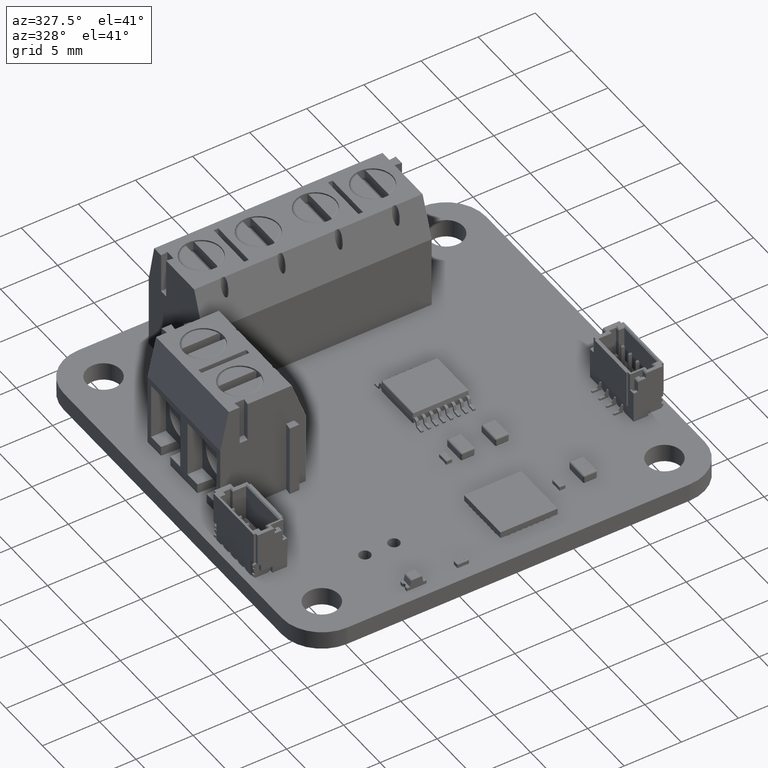
[diagram: clean part render]
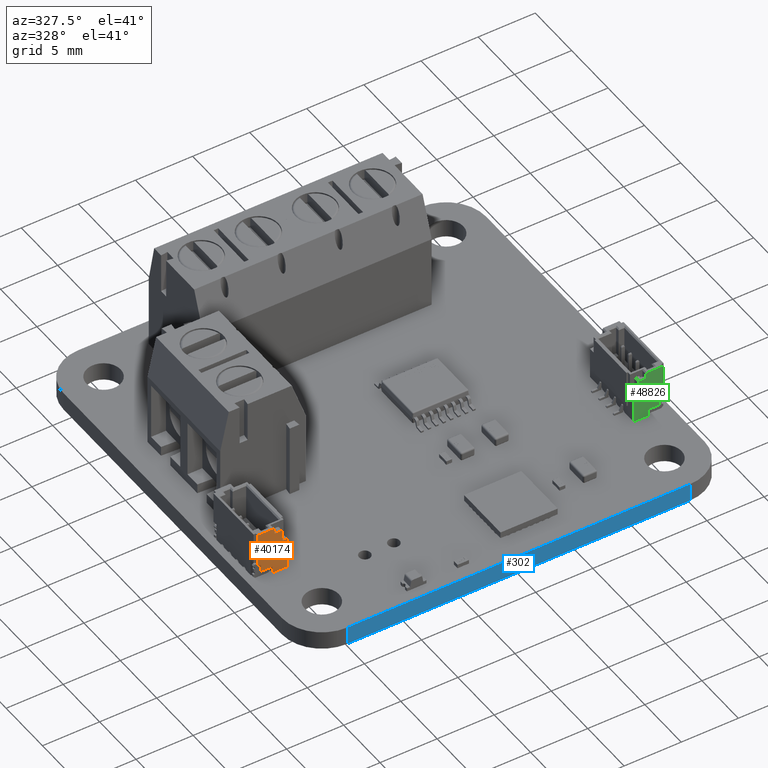
[diagram: same view with three faces highlighted in distinct colors, each labeled with its STEP entity id]
A machine part, auxiliary view with three faces highlighted in distinct colors.
Their STEP definitions:

[orange] entity #40174 — the highlighted planar face has unit normal (0, -1, 0).
#39721 = VERTEX_POINT('',#39722);
#39722 = CARTESIAN_POINT('',(-3.,2.85,1.33));
#39728 = EDGE_CURVE('',#39721,#39729,#39731,.T.);
#39729 = VERTEX_POINT('',#39730);
#39730 = CARTESIAN_POINT('',(-3.,0.1,1.33));
#39731 = LINE('',#39732,#39733);
#39732 = CARTESIAN_POINT('',(-3.,1.1,1.33));
#39733 = VECTOR('',#39734,1.);
#39734 = DIRECTION('',(0.,-1.,-2.168404344971E-16));
#40072 = VERTEX_POINT('',#40073);
#40073 = CARTESIAN_POINT('',(-3.,4.35,-1.25));
#40079 = EDGE_CURVE('',#40072,#40080,#40082,.T.);
#40080 = VERTEX_POINT('',#40081);
#40081 = CARTESIAN_POINT('',(-3.,4.35,0.15));
#40082 = LINE('',#40083,#40084);
#40083 = CARTESIAN_POINT('',(-3.,4.35,1.45));
#40084 = VECTOR('',#40085,1.);
#40085 = DIRECTION('',(-0.,-0.,1.));
#40174 = ADVANCED_FACE('',(#40175),#40271,.T.);
#40175 = FACE_BOUND('',#40176,.T.);
#40176 = EDGE_LOOP('',(#40177,#40178,#40186,#40194,#40202,#40210,#40218,
    #40224,#40225,#40233,#40241,#40249,#40257,#40265));
#40177 = ORIENTED_EDGE('',*,*,#40079,.F.);
#40178 = ORIENTED_EDGE('',*,*,#40179,.T.);
#40179 = EDGE_CURVE('',#40072,#40180,#40182,.T.);
#40180 = VERTEX_POINT('',#40181);
#40181 = CARTESIAN_POINT('',(-3.,1.473205080757,-1.25));
#40182 = LINE('',#40183,#40184);
#40183 = CARTESIAN_POINT('',(-3.,1.884392532177E-16,-1.25));
#40184 = VECTOR('',#40185,1.);
#40185 = DIRECTION('',(-0.,-1.,-1.507514025742E-16));
#40186 = ORIENTED_EDGE('',*,*,#40187,.F.);
#40187 = EDGE_CURVE('',#40188,#40180,#40190,.T.);
#40188 = VERTEX_POINT('',#40189);
#40189 = CARTESIAN_POINT('',(-3.,1.3,-0.95));
#40190 = LINE('',#40191,#40192);
#40191 = CARTESIAN_POINT('',(-3.,0.563637933202,0.32541651246));
#40192 = VECTOR('',#40193,1.);
#40193 = DIRECTION('',(0.,0.5,-0.866025403784));
#40194 = ORIENTED_EDGE('',*,*,#40195,.F.);
#40195 = EDGE_CURVE('',#40196,#40188,#40198,.T.);
#40196 = VERTEX_POINT('',#40197);
#40197 = CARTESIAN_POINT('',(-3.,0.7,-0.95));
#40198 = LINE('',#40199,#40200);
#40199 = CARTESIAN_POINT('',(-3.,1.716653439769E-16,-0.95));
#40200 = VECTOR('',#40201,1.);
#40201 = DIRECTION('',(0.,1.,1.807003620809E-16));
#40202 = ORIENTED_EDGE('',*,*,#40203,.F.);
#40203 = EDGE_CURVE('',#40204,#40196,#40206,.T.);
#40204 = VERTEX_POINT('',#40205);
#40205 = CARTESIAN_POINT('',(-3.,0.7,5.E-02));
#40206 = LINE('',#40207,#40208);
#40207 = CARTESIAN_POINT('',(-3.,0.7,0.));
#40208 = VECTOR('',#40209,1.);
#40209 = DIRECTION('',(0.,0.,-1.));
#40210 = ORIENTED_EDGE('',*,*,#40211,.F.);
#40211 = EDGE_CURVE('',#40212,#40204,#40214,.T.);
#40212 = VERTEX_POINT('',#40213);
#40213 = CARTESIAN_POINT('',(-3.,0.1,5.E-02));
#40214 = LINE('',#40215,#40216);
#40215 = CARTESIAN_POINT('',(-3.,-2.823443157514E-18,5.E-02));
#40216 = VECTOR('',#40217,1.);
#40217 = DIRECTION('',(0.,1.,5.646886315029E-17));
#40218 = ORIENTED_EDGE('',*,*,#40219,.F.);
#40219 = EDGE_CURVE('',#39729,#40212,#40220,.T.);
#40220 = LINE('',#40221,#40222);
#40221 = CARTESIAN_POINT('',(-3.,0.1,1.33));
#40222 = VECTOR('',#40223,1.);
#40223 = DIRECTION('',(0.,-1.462502930511E-17,-1.));
#40224 = ORIENTED_EDGE('',*,*,#39728,.F.);
#40225 = ORIENTED_EDGE('',*,*,#40226,.T.);
#40226 = EDGE_CURVE('',#39721,#40227,#40229,.T.);
#40227 = VERTEX_POINT('',#40228);
#40228 = CARTESIAN_POINT('',(-3.,2.85,0.95));
#40229 = LINE('',#40230,#40231);
#40230 = CARTESIAN_POINT('',(-3.,2.85,0.));
#40231 = VECTOR('',#40232,1.);
#40232 = DIRECTION('',(0.,0.,-1.));
#40233 = ORIENTED_EDGE('',*,*,#40234,.T.);
#40234 = EDGE_CURVE('',#40227,#40235,#40237,.T.);
#40235 = VERTEX_POINT('',#40236);
#40236 = CARTESIAN_POINT('',(-3.,3.75,0.95));
#40237 = LINE('',#40238,#40239);
#40238 = CARTESIAN_POINT('',(-3.,0.,0.95));
#40239 = VECTOR('',#40240,1.);
#40240 = DIRECTION('',(0.,1.,0.));
#40241 = ORIENTED_EDGE('',*,*,#40242,.T.);
#40242 = EDGE_CURVE('',#40235,#40243,#40245,.T.);
#40243 = VERTEX_POINT('',#40244);
#40244 = CARTESIAN_POINT('',(-3.,3.85,0.85));
#40245 = LINE('',#40246,#40247);
#40246 = CARTESIAN_POINT('',(-3.,2.35,2.35));
#40247 = VECTOR('',#40248,1.);
#40248 = DIRECTION('',(0.,0.707106781187,-0.707106781187));
#40249 = ORIENTED_EDGE('',*,*,#40250,.T.);
#40250 = EDGE_CURVE('',#40243,#40251,#40253,.T.);
#40251 = VERTEX_POINT('',#40252);
#40252 = CARTESIAN_POINT('',(-3.,3.85,0.25));
#40253 = LINE('',#40254,#40255);
#40254 = CARTESIAN_POINT('',(-3.,3.85,-2.782785576046E-15));
#40255 = VECTOR('',#40256,1.);
#40256 = DIRECTION('',(-0.,-7.228014483237E-16,-1.));
#40257 = ORIENTED_EDGE('',*,*,#40258,.T.);
#40258 = EDGE_CURVE('',#40251,#40259,#40261,.T.);
#40259 = VERTEX_POINT('',#40260);
#40260 = CARTESIAN_POINT('',(-3.,4.25,0.25));
#40261 = LINE('',#40262,#40263);
#40262 = CARTESIAN_POINT('',(-3.,3.388131789017E-17,0.25));
#40263 = VECTOR('',#40264,1.);
#40264 = DIRECTION('',(0.,1.,-1.355252715607E-16));
#40265 = ORIENTED_EDGE('',*,*,#40266,.T.);
#40266 = EDGE_CURVE('',#40259,#40080,#40267,.T.);
#40267 = LINE('',#40268,#40269);
#40268 = CARTESIAN_POINT('',(-3.,2.25,2.25));
#40269 = VECTOR('',#40270,1.);
#40270 = DIRECTION('',(0.,0.707106781187,-0.707106781187));
#40271 = PLANE('',#40272);
#40272 = AXIS2_PLACEMENT_3D('',#40273,#40274,#40275);
#40273 = CARTESIAN_POINT('',(-3.,0.,0.));
#40274 = DIRECTION('',(-1.,0.,0.));
#40275 = DIRECTION('',(0.,0.,1.));

[blue] entity #302 — the highlighted planar face has unit normal (0, -1, 0).
#275 = VERTEX_POINT('',#276);
#276 = CARTESIAN_POINT('',(33.5,-2.22044604925E-16,1.59540194));
#283 = EDGE_CURVE('',#284,#275,#286,.T.);
#284 = VERTEX_POINT('',#285);
#285 = CARTESIAN_POINT('',(33.5,-2.22044604925E-16,0.));
#286 = LINE('',#287,#288);
#287 = CARTESIAN_POINT('',(33.5,-2.22044604925E-16,0.));
#288 = VECTOR('',#289,1.);
#289 = DIRECTION('',(0.,0.,1.));
#302 = ADVANCED_FACE('',(#303),#328,.T.);
#303 = FACE_BOUND('',#304,.T.);
#304 = EDGE_LOOP('',(#305,#306,#314,#322));
#305 = ORIENTED_EDGE('',*,*,#283,.T.);
#306 = ORIENTED_EDGE('',*,*,#307,.T.);
#307 = EDGE_CURVE('',#275,#308,#310,.T.);
#308 = VERTEX_POINT('',#309);
#309 = CARTESIAN_POINT('',(3.5,0.,1.59540194));
#310 = LINE('',#311,#312);
#311 = CARTESIAN_POINT('',(33.5,0.,1.59540194));
#312 = VECTOR('',#313,1.);
#313 = DIRECTION('',(-1.,0.,0.));
#314 = ORIENTED_EDGE('',*,*,#315,.F.);
#315 = EDGE_CURVE('',#316,#308,#318,.T.);
#316 = VERTEX_POINT('',#317);
#317 = CARTESIAN_POINT('',(3.5,0.,0.));
#318 = LINE('',#319,#320);
#319 = CARTESIAN_POINT('',(3.5,0.,0.));
#320 = VECTOR('',#321,1.);
#321 = DIRECTION('',(0.,0.,1.));
#322 = ORIENTED_EDGE('',*,*,#323,.F.);
#323 = EDGE_CURVE('',#284,#316,#324,.T.);
#324 = LINE('',#325,#326);
#325 = CARTESIAN_POINT('',(33.5,0.,0.));
#326 = VECTOR('',#327,1.);
#327 = DIRECTION('',(-1.,0.,0.));
#328 = PLANE('',#329);
#329 = AXIS2_PLACEMENT_3D('',#330,#331,#332);
#330 = CARTESIAN_POINT('',(33.5,0.,0.));
#331 = DIRECTION('',(0.,-1.,0.));
#332 = DIRECTION('',(-1.,0.,0.));

[green] entity #48826 — the highlighted planar face has unit normal (-0, 1, 0).
#47794 = VERTEX_POINT('',#47795);
#47795 = CARTESIAN_POINT('',(3.,0.1,5.E-02));
#47801 = EDGE_CURVE('',#47802,#47794,#47804,.T.);
#47802 = VERTEX_POINT('',#47803);
#47803 = CARTESIAN_POINT('',(3.,0.1,1.33));
#47804 = LINE('',#47805,#47806);
#47805 = CARTESIAN_POINT('',(3.,0.1,1.33));
#47806 = VECTOR('',#47807,1.);
#47807 = DIRECTION('',(0.,-1.E-17,-1.));
#47964 = EDGE_CURVE('',#47965,#47802,#47967,.T.);
#47965 = VERTEX_POINT('',#47966);
#47966 = CARTESIAN_POINT('',(3.,2.85,1.33));
#47967 = LINE('',#47968,#47969);
#47968 = CARTESIAN_POINT('',(3.,1.1,1.33));
#47969 = VECTOR('',#47970,1.);
#47970 = DIRECTION('',(0.,-1.,-2.2E-16));
#48209 = EDGE_CURVE('',#47965,#48210,#48212,.T.);
#48210 = VERTEX_POINT('',#48211);
#48211 = CARTESIAN_POINT('',(3.,2.85,0.95));
#48212 = LINE('',#48213,#48214);
#48213 = CARTESIAN_POINT('',(3.,2.85,0.));
#48214 = VECTOR('',#48215,1.);
#48215 = DIRECTION('',(0.,0.,-1.));
#48258 = VERTEX_POINT('',#48259);
#48259 = CARTESIAN_POINT('',(3.,3.85,0.85));
#48265 = EDGE_CURVE('',#48258,#48266,#48268,.T.);
#48266 = VERTEX_POINT('',#48267);
#48267 = CARTESIAN_POINT('',(3.,3.85,0.25));
#48268 = LINE('',#48269,#48270);
#48269 = CARTESIAN_POINT('',(3.,3.85,-2.78E-15));
#48270 = VECTOR('',#48271,1.);
#48271 = DIRECTION('',(0.,-7.2E-16,-1.));
#48450 = VERTEX_POINT('',#48451);
#48451 = CARTESIAN_POINT('',(3.,4.35,0.15));
#48457 = EDGE_CURVE('',#48458,#48450,#48460,.T.);
#48458 = VERTEX_POINT('',#48459);
#48459 = CARTESIAN_POINT('',(3.,4.35,-1.25));
#48460 = LINE('',#48461,#48462);
#48461 = CARTESIAN_POINT('',(3.,4.35,1.45));
#48462 = VECTOR('',#48463,1.);
#48463 = DIRECTION('',(-0.,-0.,1.));
#48826 = ADVANCED_FACE('',(#48827),#48900,.F.);
#48827 = FACE_BOUND('',#48828,.T.);
#48828 = EDGE_LOOP('',(#48829,#48839,#48845,#48846,#48854,#48860,#48861,
    #48869,#48875,#48876,#48877,#48878,#48886,#48894));
#48829 = ORIENTED_EDGE('',*,*,#48830,.T.);
#48830 = EDGE_CURVE('',#48831,#48833,#48835,.T.);
#48831 = VERTEX_POINT('',#48832);
#48832 = CARTESIAN_POINT('',(3.,1.3,-0.95));
#48833 = VERTEX_POINT('',#48834);
#48834 = CARTESIAN_POINT('',(3.,1.473205080757,-1.25));
#48835 = LINE('',#48836,#48837);
#48836 = CARTESIAN_POINT('',(3.,0.563637933202,0.32541651246));
#48837 = VECTOR('',#48838,1.);
#48838 = DIRECTION('',(0.,0.5,-0.866025403784));
#48839 = ORIENTED_EDGE('',*,*,#48840,.F.);
#48840 = EDGE_CURVE('',#48458,#48833,#48841,.T.);
#48841 = LINE('',#48842,#48843);
#48842 = CARTESIAN_POINT('',(3.,1.9E-16,-1.25));
#48843 = VECTOR('',#48844,1.);
#48844 = DIRECTION('',(0.,-1.,-1.5E-16));
#48845 = ORIENTED_EDGE('',*,*,#48457,.T.);
#48846 = ORIENTED_EDGE('',*,*,#48847,.F.);
#48847 = EDGE_CURVE('',#48848,#48450,#48850,.T.);
#48848 = VERTEX_POINT('',#48849);
#48849 = CARTESIAN_POINT('',(3.,4.25,0.25));
#48850 = LINE('',#48851,#48852);
#48851 = CARTESIAN_POINT('',(3.,2.25,2.25));
#48852 = VECTOR('',#48853,1.);
#48853 = DIRECTION('',(0.,0.707106781187,-0.707106781187));
#48854 = ORIENTED_EDGE('',*,*,#48855,.F.);
#48855 = EDGE_CURVE('',#48266,#48848,#48856,.T.);
#48856 = LINE('',#48857,#48858);
#48857 = CARTESIAN_POINT('',(3.,3.E-17,0.25));
#48858 = VECTOR('',#48859,1.);
#48859 = DIRECTION('',(0.,1.,-1.4E-16));
#48860 = ORIENTED_EDGE('',*,*,#48265,.F.);
#48861 = ORIENTED_EDGE('',*,*,#48862,.F.);
#48862 = EDGE_CURVE('',#48863,#48258,#48865,.T.);
#48863 = VERTEX_POINT('',#48864);
#48864 = CARTESIAN_POINT('',(3.,3.75,0.95));
#48865 = LINE('',#48866,#48867);
#48866 = CARTESIAN_POINT('',(3.,2.35,2.35));
#48867 = VECTOR('',#48868,1.);
#48868 = DIRECTION('',(0.,0.707106781187,-0.707106781187));
#48869 = ORIENTED_EDGE('',*,*,#48870,.F.);
#48870 = EDGE_CURVE('',#48210,#48863,#48871,.T.);
#48871 = LINE('',#48872,#48873);
#48872 = CARTESIAN_POINT('',(3.,-0.,0.95));
#48873 = VECTOR('',#48874,1.);
#48874 = DIRECTION('',(0.,1.,0.));
#48875 = ORIENTED_EDGE('',*,*,#48209,.F.);
#48876 = ORIENTED_EDGE('',*,*,#47964,.T.);
#48877 = ORIENTED_EDGE('',*,*,#47801,.T.);
#48878 = ORIENTED_EDGE('',*,*,#48879,.T.);
#48879 = EDGE_CURVE('',#47794,#48880,#48882,.T.);
#48880 = VERTEX_POINT('',#48881);
#48881 = CARTESIAN_POINT('',(3.,0.7,5.E-02));
#48882 = LINE('',#48883,#48884);
#48883 = CARTESIAN_POINT('',(3.,-0.,5.E-02));
#48884 = VECTOR('',#48885,1.);
#48885 = DIRECTION('',(0.,1.,6.E-17));
#48886 = ORIENTED_EDGE('',*,*,#48887,.T.);
#48887 = EDGE_CURVE('',#48880,#48888,#48890,.T.);
#48888 = VERTEX_POINT('',#48889);
#48889 = CARTESIAN_POINT('',(3.,0.7,-0.95));
#48890 = LINE('',#48891,#48892);
#48891 = CARTESIAN_POINT('',(3.,0.7,0.));
#48892 = VECTOR('',#48893,1.);
#48893 = DIRECTION('',(0.,0.,-1.));
#48894 = ORIENTED_EDGE('',*,*,#48895,.T.);
#48895 = EDGE_CURVE('',#48888,#48831,#48896,.T.);
#48896 = LINE('',#48897,#48898);
#48897 = CARTESIAN_POINT('',(3.,1.7E-16,-0.95));
#48898 = VECTOR('',#48899,1.);
#48899 = DIRECTION('',(0.,1.,1.8E-16));
#48900 = PLANE('',#48901);
#48901 = AXIS2_PLACEMENT_3D('',#48902,#48903,#48904);
#48902 = CARTESIAN_POINT('',(3.,0.,0.));
#48903 = DIRECTION('',(-1.,0.,0.));
#48904 = DIRECTION('',(0.,0.,1.));